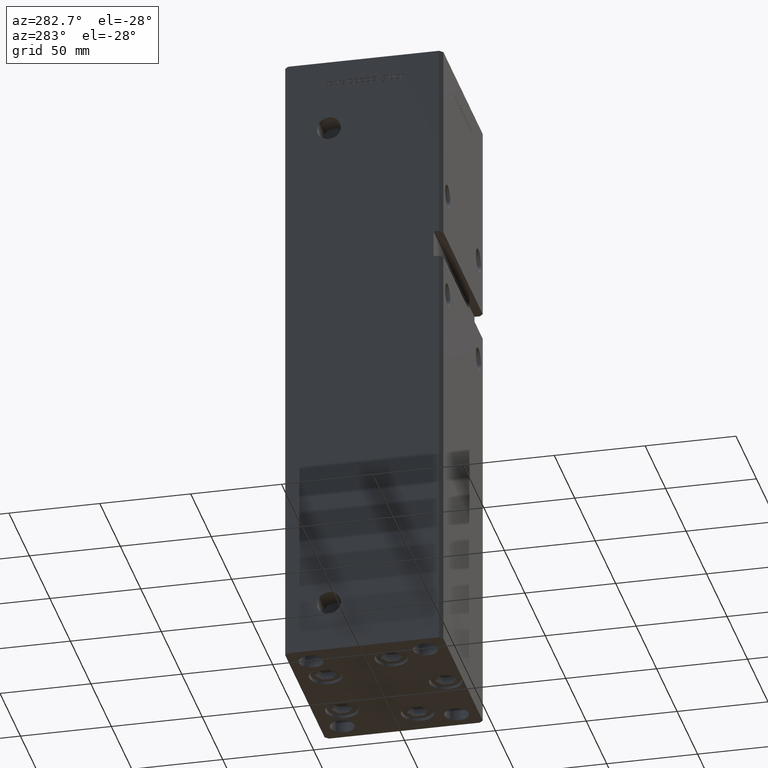
[diagram: clean part render]
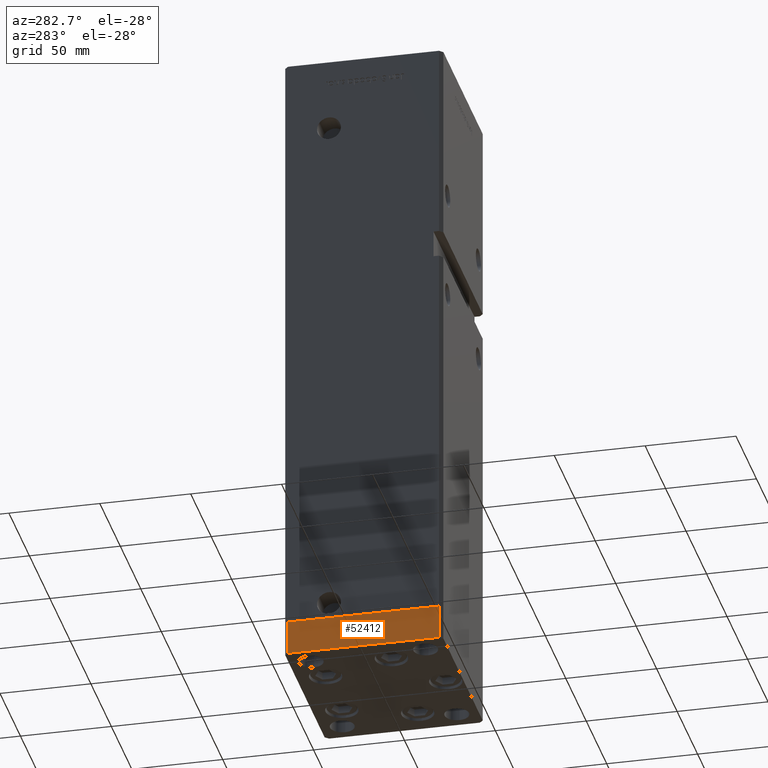
[diagram: same view with one face highlighted and labeled with its STEP entity id]
A machine part, auxiliary view. The second image highlights one B-rep face of the part: STEP entity #52412.
In plain terms, the highlighted planar face has unit normal (-1, -0, 0).
Its self-contained STEP definition (entity closure, byte-faithful):
#82 = CARTESIAN_POINT ( 'NONE',  ( 49.99999999999992184, 41.49999999999998579, 0.000000000000000000 ) ) ;
#122 = LINE ( 'NONE', #11977, #13622 ) ;
#341 = AXIS2_PLACEMENT_3D ( 'NONE', #42223, #13770, #17266 ) ;
#850 = PLANE ( 'NONE',  #341 ) ;
#5029 = VERTEX_POINT ( 'NONE', #82 ) ;
#11693 = LINE ( 'NONE', #32356, #33043 ) ;
#11830 = CARTESIAN_POINT ( 'NONE',  ( 50.00000000000000000, -41.49999999999999289, -19.00000000000000000 ) ) ;
#11897 = CARTESIAN_POINT ( 'NONE',  ( 50.00000000000000000, -41.49999999999999289, 0.000000000000000000 ) ) ;
#11977 = CARTESIAN_POINT ( 'NONE',  ( 49.99999999999992184, 41.49999999999998579, -19.00000000000000000 ) ) ;
#12200 = VERTEX_POINT ( 'NONE', #38045 ) ;
#13174 = LINE ( 'NONE', #45929, #45377 ) ;
#13622 = VECTOR ( 'NONE', #20044, 1000.000000000000000 ) ;
#13770 = DIRECTION ( 'NONE',  ( 1.000000000000000000, 1.003213576468515193E-15, -0.000000000000000000 ) ) ;
#14542 = EDGE_CURVE ( 'NONE', #45144, #12200, #11693, .T. ) ;
#15173 = EDGE_CURVE ( 'NONE', #45144, #48174, #23939, .T. ) ;
#15869 = DIRECTION ( 'NONE',  ( 0.000000000000000000, 0.000000000000000000, 1.000000000000000000 ) ) ;
#17266 = DIRECTION ( 'NONE',  ( -1.003213576468515193E-15, 1.000000000000000000, 0.000000000000000000 ) ) ;
#20044 = DIRECTION ( 'NONE',  ( 0.000000000000000000, 0.000000000000000000, 1.000000000000000000 ) ) ;
#23002 = DIRECTION ( 'NONE',  ( -1.003213576468515193E-15, 1.000000000000000000, 0.000000000000000000 ) ) ;
#23026 = EDGE_CURVE ( 'NONE', #12200, #5029, #122, .T. ) ;
#23939 = LINE ( 'NONE', #11830, #45061 ) ;
#24349 = ORIENTED_EDGE ( 'NONE', *, *, #14542, .T. ) ;
#27094 = ORIENTED_EDGE ( 'NONE', *, *, #23026, .T. ) ;
#27698 = EDGE_LOOP ( 'NONE', ( #52605, #47152, #24349, #27094 ) ) ;
#31013 = CARTESIAN_POINT ( 'NONE',  ( 50.00000000000000000, -41.49999999999999289, -19.00000000000000000 ) ) ;
#32356 = CARTESIAN_POINT ( 'NONE',  ( 50.00000000000000000, -41.49999999999999289, -19.00000000000000000 ) ) ;
#33043 = VECTOR ( 'NONE', #23002, 1000.000000000000000 ) ;
#33633 = FACE_OUTER_BOUND ( 'NONE', #27698, .T. ) ;
#37670 = EDGE_CURVE ( 'NONE', #48174, #5029, #13174, .T. ) ;
#38045 = CARTESIAN_POINT ( 'NONE',  ( 49.99999999999992184, 41.49999999999998579, -19.00000000000000000 ) ) ;
#38402 = DIRECTION ( 'NONE',  ( -1.003213576468515193E-15, 1.000000000000000000, 0.000000000000000000 ) ) ;
#42223 = CARTESIAN_POINT ( 'NONE',  ( 50.00000000000000000, -41.49999999999999289, -19.00000000000000000 ) ) ;
#45061 = VECTOR ( 'NONE', #15869, 1000.000000000000000 ) ;
#45144 = VERTEX_POINT ( 'NONE', #31013 ) ;
#45377 = VECTOR ( 'NONE', #38402, 1000.000000000000000 ) ;
#45929 = CARTESIAN_POINT ( 'NONE',  ( 50.00000000000000000, -41.49999999999999289, 0.000000000000000000 ) ) ;
#47152 = ORIENTED_EDGE ( 'NONE', *, *, #15173, .F. ) ;
#48174 = VERTEX_POINT ( 'NONE', #11897 ) ;
#52412 = ADVANCED_FACE ( 'NONE', ( #33633 ), #850, .T. ) ;
#52605 = ORIENTED_EDGE ( 'NONE', *, *, #37670, .F. ) ;